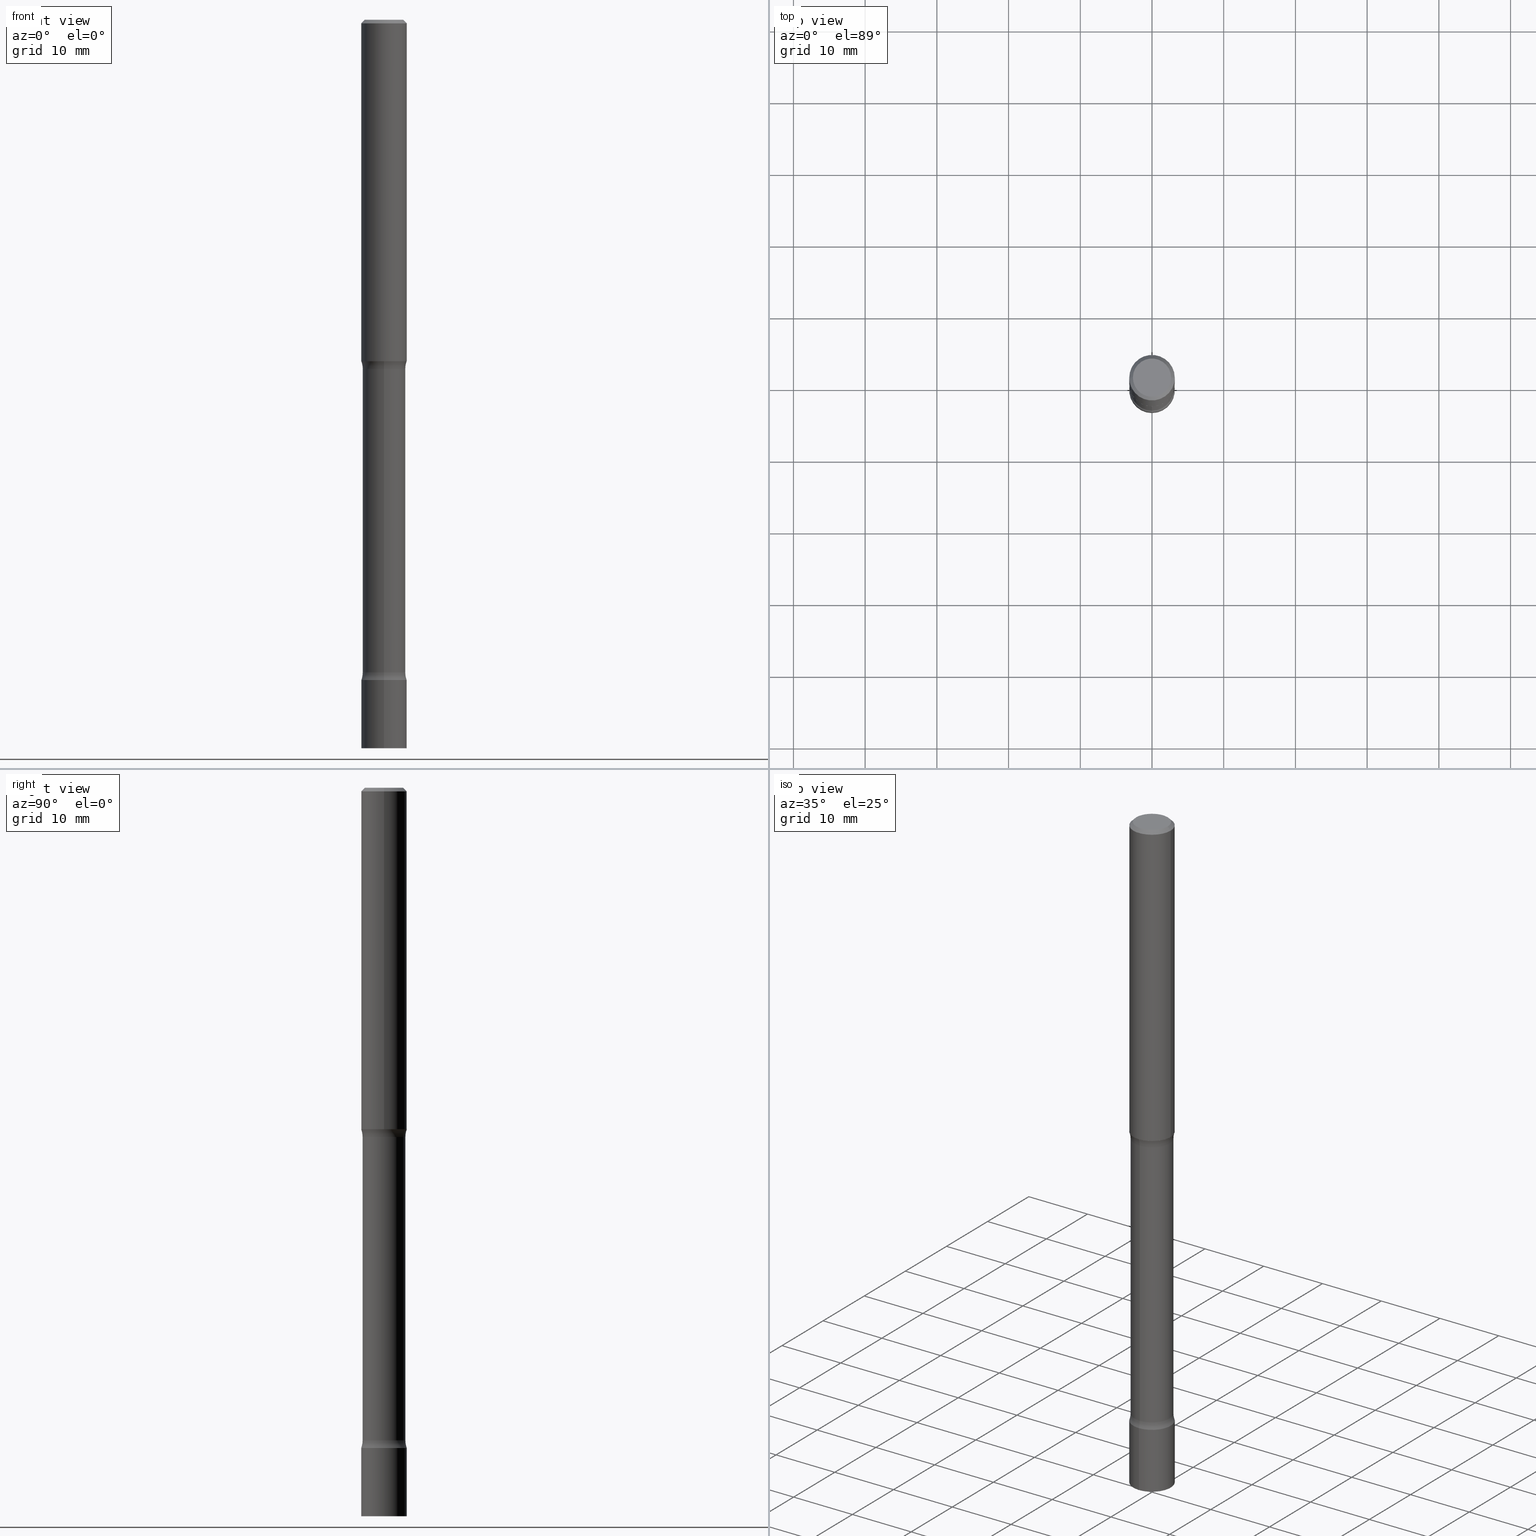
[diagram: canonical four-view strip — front | top / right | iso, engineering-drawing reading convention]
A machine part, canonical four-view strip (front | top / right | iso — engineering-drawing reading convention). The complete STEP part file that produces these views, byte-faithful:
ISO-10303-21;
HEADER;
FILE_DESCRIPTION (( 'STEP AP203' ),
    '1' );
FILE_NAME ('34640.STEP',
    '2024-03-11T13:19:26',
    ( '' ),
    ( '' ),
    'SwSTEP 2.0',
    'SolidWorks 2023',
    '' );
FILE_SCHEMA (( 'CONFIG_CONTROL_DESIGN' ));
ENDSEC;

DATA;
#1 = PLANE ( 'NONE',  #117 ) ;
#2 = DIRECTION ( 'NONE',  ( -2.442527019409646182E-29, 3.495694144941752733E-15, 1.000000000000000000 ) ) ;
#3 = ADVANCED_FACE ( 'NONE', ( #238 ), #447, .F. ) ;
#4 = AXIS2_PLACEMENT_3D ( 'NONE', #260, #298, #505 ) ;
#5 = EDGE_LOOP ( 'NONE', ( #222, #225 ) ) ;
#6 =( NAMED_UNIT ( * ) PLANE_ANGLE_UNIT ( ) SI_UNIT ( $, .RADIAN. ) );
#7 = EDGE_LOOP ( 'NONE', ( #265, #210, #18, #390 ) ) ;
#8 = CARTESIAN_POINT ( 'NONE',  ( 8.854160445359968216E-29, -1.267189127541385287E-14, -3.624999999999999556 ) ) ;
#9 = CARTESIAN_POINT ( 'NONE',  ( 9.513849917074038221E-29, -1.434975285100415564E-14, -4.000000000000000000 ) ) ;
#10 = EDGE_LOOP ( 'NONE', ( #320, #204, #372, #96 ) ) ;
#11 = AXIS2_PLACEMENT_3D ( 'NONE', #380, #268, #90 ) ;
#12 = CARTESIAN_POINT ( 'NONE',  ( 8.784378481168438150E-29, -1.247357122861336263E-14, -3.582353194726919821 ) ) ;
#13 = AXIS2_PLACEMENT_3D ( 'NONE', #202, #490, #420 ) ;
#14 = EDGE_LOOP ( 'NONE', ( #364, #303, #193, #58 ) ) ;
#15 = AXIS2_PLACEMENT_3D ( 'NONE', #134, #487, #135 ) ;
#16 = COORDINATED_UNIVERSAL_TIME_OFFSET ( 5, 0, .BEHIND. ) ;
#17 = CARTESIAN_POINT ( 'NONE',  ( 4.890937612370273159E-31, -6.982962677686291609E-17, -0.02000000000000000042 ) ) ;
#18 = ORIENTED_EDGE ( 'NONE', *, *, #501, .T. ) ;
#19 = CARTESIAN_POINT ( 'NONE',  ( 8.779137382850924251E-29, -1.248107677970883248E-14, -3.582353194726919821 ) ) ;
#20 = DIRECTION ( 'NONE',  ( -0.7071067811865469066, 2.468850131082251144E-15, -0.7071067811865479058 ) ) ;
#21 = DIRECTION ( 'NONE',  ( 6.982962677686265922E-15, 1.000000000000000000, -3.495694144941752733E-15 ) ) ;
#22 = ADVANCED_FACE ( 'NONE', ( #240 ), #30, .F. ) ;
#23 = DIRECTION ( 'NONE',  ( 1.759171924570855496E-29, -4.474297534907476675E-15, -1.000000000000000000 ) ) ;
#24 = ORIENTED_EDGE ( 'NONE', *, *, #325, .T. ) ;
#25 = AXIS2_PLACEMENT_3D ( 'NONE', #329, #496, #145 ) ;
#26 = AXIS2_PLACEMENT_3D ( 'NONE', #113, #341, #148 ) ;
#27 = APPROVAL ( #211, 'UNSPECIFIED' ) ;
#28 = DIRECTION ( 'NONE',  ( -2.445468806185136877E-29, 3.491481338843145188E-15, 1.000000000000000000 ) ) ;
#29 = EDGE_CURVE ( 'NONE', #129, #236, #77, .T. ) ;
#30 = PLANE ( 'NONE',  #383 ) ;
#31 = CALENDAR_DATE ( 2024, 11, 3 ) ;
#32 = EDGE_CURVE ( 'NONE', #362, #475, #38, .T. ) ;
#33 = ADVANCED_FACE ( 'NONE', ( #413 ), #289, .F. ) ;
#34 = AXIS2_PLACEMENT_3D ( 'NONE', #361, #191, #351 ) ;
#35 = CARTESIAN_POINT ( 'NONE',  ( 0.1249999999999999029, -7.419397845041682046E-15, -1.875000000000000000 ) ) ;
#36 = EDGE_CURVE ( 'NONE', #236, #326, #209, .T. ) ;
#37 = DATE_TIME_ROLE ( 'classification_date' ) ;
#38 = CIRCLE ( 'NONE', #279, 0.1250000000000001110 ) ;
#39 = DIRECTION ( 'NONE',  ( -6.982962677686266711E-15, -1.000000000000000000, 4.370956789862817205E-15 ) ) ;
#40 = FACE_OUTER_BOUND ( 'NONE', #5, .T. ) ;
#41 = DIRECTION ( 'NONE',  ( -6.982962677686265922E-15, -1.000000000000000000, 4.474297534907476675E-15 ) ) ;
#42 = DIRECTION ( 'NONE',  ( -6.982962677686265922E-15, -1.000000000000000000, 0.000000000000000000 ) ) ;
#43 = CARTESIAN_POINT ( 'NONE',  ( -8.061085147380546628E-16, -0.1175000000000136074, -3.999999999999999556 ) ) ;
#44 = VECTOR ( 'NONE', #28, 39.37007874015748143 ) ;
#45 = DIRECTION ( 'NONE',  ( 2.445468806185136597E-29, -3.491481338843145583E-15, -1.000000000000000000 ) ) ;
#46 = AXIS2_PLACEMENT_3D ( 'NONE', #399, #283, #480 ) ;
#47 = EDGE_LOOP ( 'NONE', ( #94, #173, #446, #243 ) ) ;
#48 = EDGE_CURVE ( 'NONE', #261, #128, #109, .T. ) ;
#49 = DIRECTION ( 'NONE',  ( 1.000000000000000000, -6.982962677686268288E-15, 0.000000000000000000 ) ) ;
#50 = ORIENTED_EDGE ( 'NONE', *, *, #492, .T. ) ;
#51 = FACE_OUTER_BOUND ( 'NONE', #47, .T. ) ;
#52 = PERSON_AND_ORGANIZATION_ROLE ( 'design_owner' ) ;
#53 = CARTESIAN_POINT ( 'NONE',  ( -0.1249999999999995559, 8.030407079339172796E-16, -0.02000000000000000042 ) ) ;
#54 = LOCAL_TIME ( 9, 19, 26.00000000000000000, #16 ) ;
#55 = DIRECTION ( 'NONE',  ( -2.442527019409646182E-29, 3.495694144941752733E-15, 1.000000000000000000 ) ) ;
#56 = APPROVAL_DATE_TIME ( #272, #189 ) ;
#57 = FACE_OUTER_BOUND ( 'NONE', #127, .T. ) ;
#58 = ORIENTED_EDGE ( 'NONE', *, *, #325, .F. ) ;
#59 = CARTESIAN_POINT ( 'NONE',  ( 9.513849917074038221E-29, -1.434975285100415564E-14, -4.000000000000000000 ) ) ;
#60 = PERSON_AND_ORGANIZATION_ROLE ( 'creator' ) ;
#61 = ORIENTED_EDGE ( 'NONE', *, *, #472, .F. ) ;
#62 = CC_DESIGN_PERSON_AND_ORGANIZATION_ASSIGNMENT ( #142, #146, ( #103 ) ) ;
#63 = ORIENTED_EDGE ( 'NONE', *, *, #492, .F. ) ;
#64 = ORIENTED_EDGE ( 'NONE', *, *, #467, .T. ) ;
#65 = CIRCLE ( 'NONE', #147, 0.1250000000000001110 ) ;
#66 = DIRECTION ( 'NONE',  ( 6.982962677686265922E-15, 1.000000000000000000, -4.474297534907476675E-15 ) ) ;
#67 = ORIENTED_EDGE ( 'NONE', *, *, #150, .F. ) ;
#68 = DATE_AND_TIME ( #110, #358 ) ;
#69 = ADVANCED_FACE ( 'NONE', ( #384 ), #256, .T. ) ;
#70 = AXIS2_PLACEMENT_3D ( 'NONE', #167, #235, #136 ) ;
#71 = DIRECTION ( 'NONE',  ( -2.445468806185136597E-29, 3.491481338843145583E-15, 1.000000000000000000 ) ) ;
#72 = PERSON_AND_ORGANIZATION ( #367, #196 ) ;
#73 = DATE_AND_TIME ( #245, #405 ) ;
#74 = DIRECTION ( 'NONE',  ( 6.982962677686265133E-15, 1.000000000000000000, -4.649954031768944672E-15 ) ) ;
#75 = CIRCLE ( 'NONE', #427, 0.1249999999999998473 ) ;
#76 = EDGE_CURVE ( 'NONE', #484, #439, #304, .T. ) ;
#77 = CIRCLE ( 'NONE', #70, 0.1249999999999999029 ) ;
#78 = DIRECTION ( 'NONE',  ( -6.982962677686266711E-15, -1.000000000000000000, 4.370956789862817205E-15 ) ) ;
#79 = CARTESIAN_POINT ( 'NONE',  ( -1.663670764459508730E-15, -0.2425000000000125111, -3.582353194726918488 ) ) ;
#80 = CIRCLE ( 'NONE', #479, 0.1249999999999983208 ) ;
#81 = CARTESIAN_POINT ( 'NONE',  ( 0.000000000000000000, 0.000000000000000000, 0.000000000000000000 ) ) ;
#82 = CARTESIAN_POINT ( 'NONE',  ( 9.770108077638584728E-29, -1.398277657976701093E-14, -4.000000000000000000 ) ) ;
#83 = PLANE ( 'NONE',  #441 ) ;
#84 = DIRECTION ( 'NONE',  ( 6.982962677686266711E-15, 1.000000000000000000, -4.649954031768988059E-15 ) ) ;
#85 = CARTESIAN_POINT ( 'NONE',  ( 0.1249999999999995559, -9.273918764983013908E-16, -0.02000000000000000042 ) ) ;
#86 = CIRCLE ( 'NONE', #123, 0.1049999999999996353 ) ;
#87 = PRODUCT ( '34640', '34640', '', ( #359 ) ) ;
#88 = CIRCLE ( 'NONE', #248, 0.1175000000000003542 ) ;
#89 = EDGE_CURVE ( 'NONE', #129, #343, #485, .T. ) ;
#90 = DIRECTION ( 'NONE',  ( -6.982962677686266711E-15, -1.000000000000000000, 3.495694144941752733E-15 ) ) ;
#91 = DIRECTION ( 'NONE',  ( 1.759171924570855496E-29, -4.474297534907476675E-15, -1.000000000000000000 ) ) ;
#92 = VERTEX_POINT ( 'NONE', #93 ) ;
#93 = CARTESIAN_POINT ( 'NONE',  ( 8.204981146282264856E-16, 0.1174999999999878642, -3.582353194726920265 ) ) ;
#94 = ORIENTED_EDGE ( 'NONE', *, *, #89, .F. ) ;
#95 = EDGE_LOOP ( 'NONE', ( #276, #264 ) ) ;
#96 = ORIENTED_EDGE ( 'NONE', *, *, #36, .F. ) ;
#97 = EDGE_LOOP ( 'NONE', ( #197, #369 ) ) ;
#98 =( LENGTH_UNIT ( ) NAMED_UNIT ( * ) SI_UNIT ( $, .METRE. ) );
#99 = EDGE_CURVE ( 'NONE', #92, #270, #168, .T. ) ;
#100 = EDGE_LOOP ( 'NONE', ( #63, #229 ) ) ;
#101 = ADVANCED_FACE ( 'NONE', ( #51 ), #271, .T. ) ;
#102 = APPROVAL_ROLE ( '' ) ;
#103 = SECURITY_CLASSIFICATION ( '', '', #503 ) ;
#104 = DIRECTION ( 'NONE',  ( 1.000000000000000000, -6.860497997771530774E-15, 4.828762852537539750E-29 ) ) ;
#105 = AXIS2_PLACEMENT_3D ( 'NONE', #481, #55, #353 ) ;
#106 = CONICAL_SURFACE ( 'NONE', #460, 0.1249999999999995559, 0.7853981633974476129 ) ;
#107 = DATE_TIME_ROLE ( 'creation_date' ) ;
#108 = VERTEX_POINT ( 'NONE', #349 ) ;
#109 = CIRCLE ( 'NONE', #25, 0.1250000000000001110 ) ;
#110 = CALENDAR_DATE ( 2024, 11, 3 ) ;
#111 = AXIS2_PLACEMENT_3D ( 'NONE', #17, #281, #234 ) ;
#112 = CARTESIAN_POINT ( 'NONE',  ( 4.585254011597131119E-29, -6.546527510330898707E-15, -1.875000000000000000 ) ) ;
#113 = CARTESIAN_POINT ( 'NONE',  ( 7.332110811570553619E-16, 0.1049999999999996353, -3.900823592740812603E-16 ) ) ;
#114 = DIRECTION ( 'NONE',  ( -1.759171924570855216E-29, 4.474297534907476675E-15, 1.000000000000000000 ) ) ;
#115 = ADVANCED_FACE ( 'NONE', ( #448 ), #408, .T. ) ;
#116 = DIRECTION ( 'NONE',  ( -2.442527019409646182E-29, 3.495694144941752733E-15, 1.000000000000000000 ) ) ;
#117 = AXIS2_PLACEMENT_3D ( 'NONE', #112, #429, #340 ) ;
#118 = ORIENTED_EDGE ( 'NONE', *, *, #489, .F. ) ;
#119 = DIRECTION ( 'NONE',  ( 6.982962677686265133E-15, 1.000000000000000000, -4.370956789862817205E-15 ) ) ;
#120 = CARTESIAN_POINT ( 'NONE',  ( 9.770108077638584728E-29, -1.398277657976701093E-14, -4.000000000000000000 ) ) ;
#121 = EDGE_CURVE ( 'NONE', #407, #471, #374, .T. ) ;
#122 = VECTOR ( 'NONE', #333, 39.37007874015748143 ) ;
#123 = AXIS2_PLACEMENT_3D ( 'NONE', #152, #144, #254 ) ;
#124 = ORIENTED_EDGE ( 'NONE', *, *, #218, .T. ) ;
#125 = LINE ( 'NONE', #269, #507 ) ;
#126 = ORIENTED_EDGE ( 'NONE', *, *, #397, .F. ) ;
#127 = EDGE_LOOP ( 'NONE', ( #453, #350, #285, #410 ) ) ;
#128 = VERTEX_POINT ( 'NONE', #151 ) ;
#129 = VERTEX_POINT ( 'NONE', #300 ) ;
#130 = DIRECTION ( 'NONE',  ( 6.982962677686266711E-15, 1.000000000000000000, -4.370956789862879525E-15 ) ) ;
#131 = CC_DESIGN_PERSON_AND_ORGANIZATION_ASSIGNMENT ( #417, #251, ( #206 ) ) ;
#132 = AXIS2_PLACEMENT_3D ( 'NONE', #165, #166, #66 ) ;
#133 = DIRECTION ( 'NONE',  ( 6.860497997771531562E-15, 1.000000000000000000, 0.000000000000000000 ) ) ;
#134 = CARTESIAN_POINT ( 'NONE',  ( 0.000000000000000000, 0.000000000000000000, 0.000000000000000000 ) ) ;
#135 = DIRECTION ( 'NONE',  ( 1.000000000000000000, 0.000000000000000000, 0.000000000000000000 ) ) ;
#136 = DIRECTION ( 'NONE',  ( 1.000000000000000000, -6.982962677686268288E-15, 0.000000000000000000 ) ) ;
#137 = EDGE_LOOP ( 'NONE', ( #373, #452 ) ) ;
#138 = TOROIDAL_SURFACE ( 'NONE', #46, 0.2424999999999982725, 0.1250000000000001110 ) ;
#139 = APPROVAL_PERSON_ORGANIZATION ( #242, #355, #421 ) ;
#140 = ORIENTED_EDGE ( 'NONE', *, *, #99, .T. ) ;
#141 = CIRCLE ( 'NONE', #179, 0.1250000000000001110 ) ;
#142 = PERSON_AND_ORGANIZATION ( #367, #196 ) ;
#143 = ADVANCED_FACE ( 'NONE', ( #40 ), #378, .T. ) ;
#144 = DIRECTION ( 'NONE',  ( -2.445468806185136597E-29, 3.491481338843145583E-15, 1.000000000000000000 ) ) ;
#145 = DIRECTION ( 'NONE',  ( -6.982962677686266711E-15, -1.000000000000000000, 0.000000000000000000 ) ) ;
#146 = PERSON_AND_ORGANIZATION_ROLE ( 'classification_officer' ) ;
#147 = AXIS2_PLACEMENT_3D ( 'NONE', #82, #457, #78 ) ;
#148 = DIRECTION ( 'NONE',  ( -1.000000000000000000, 6.982962677686265922E-15, -4.876176775795935793E-29 ) ) ;
#149 = DIRECTION ( 'NONE',  ( 1.759171924570855496E-29, -4.474297534907476675E-15, -1.000000000000000000 ) ) ;
#150 = EDGE_CURVE ( 'NONE', #108, #439, #433, .T. ) ;
#151 = CARTESIAN_POINT ( 'NONE',  ( 8.728703347108289941E-16, 0.1249999999999934636, -1.875000000000000666 ) ) ;
#152 = CARTESIAN_POINT ( 'NONE',  ( 1.148236555768741665E-45, -1.639377487418492057E-31, -4.695363739110452099E-17 ) ) ;
#153 = CARTESIAN_POINT ( 'NONE',  ( -8.575622497213541776E-16, -0.1250000000000128508, -3.624999999999999112 ) ) ;
#154 = CARTESIAN_POINT ( 'NONE',  ( 1.693368449339007556E-15, 0.2424999999999875866, -3.582353194726920709 ) ) ;
#155 = AXIS2_PLACEMENT_3D ( 'NONE', #19, #317, #402 ) ;
#156 = DIRECTION ( 'NONE',  ( 1.759171924570855496E-29, -4.474297534907476675E-15, -1.000000000000000000 ) ) ;
#157 = ORIENTED_EDGE ( 'NONE', *, *, #185, .T. ) ;
#158 = DIRECTION ( 'NONE',  ( 1.000000000000000000, -6.860497997771530774E-15, 4.828762852537539750E-29 ) ) ;
#159 = ORIENTED_EDGE ( 'NONE', *, *, #48, .F. ) ;
#160 = DIRECTION ( 'NONE',  ( 1.759171924570855496E-29, -4.474297534907476675E-15, -1.000000000000000000 ) ) ;
#161 = CIRCLE ( 'NONE', #34, 0.1174999999999981615 ) ;
#162 = FACE_OUTER_BOUND ( 'NONE', #495, .T. ) ;
#163 =( GEOMETRIC_REPRESENTATION_CONTEXT ( 3 ) GLOBAL_UNCERTAINTY_ASSIGNED_CONTEXT ( ( #428 ) ) GLOBAL_UNIT_ASSIGNED_CONTEXT ( ( #176, #6, #339 ) ) REPRESENTATION_CONTEXT ( 'NONE', 'WORKASPACE' ) );
#164 = ORIENTED_EDGE ( 'NONE', *, *, #150, .T. ) ;
#165 = CARTESIAN_POINT ( 'NONE',  ( 8.784378481168438150E-29, -1.247357122861336263E-14, -3.582353194726919821 ) ) ;
#166 = DIRECTION ( 'NONE',  ( 1.759171924570855496E-29, -4.474297534907476675E-15, -1.000000000000000000 ) ) ;
#167 = CARTESIAN_POINT ( 'NONE',  ( 4.585254011597131119E-29, -6.546527510330898707E-15, -1.875000000000000000 ) ) ;
#168 = CIRCLE ( 'NONE', #155, 0.1175000000000003542 ) ;
#169 = CIRCLE ( 'NONE', #232, 0.1249999999999998473 ) ;
#170 = ORIENTED_EDGE ( 'NONE', *, *, #32, .F. ) ;
#171 = ORIENTED_EDGE ( 'NONE', *, *, #307, .F. ) ;
#172 = COORDINATED_UNIVERSAL_TIME_OFFSET ( 5, 0, .BEHIND. ) ;
#173 = ORIENTED_EDGE ( 'NONE', *, *, #29, .T. ) ;
#174 = LOCAL_TIME ( 9, 19, 26.00000000000000000, #249 ) ;
#175 = CC_DESIGN_DATE_AND_TIME_ASSIGNMENT ( #68, #37, ( #103 ) ) ;
#176 =( CONVERSION_BASED_UNIT ( 'INCH', #216 ) LENGTH_UNIT ( ) NAMED_UNIT ( #201 ) );
#177 = DIRECTION ( 'NONE',  ( -1.000000000000000000, 6.982962677686265922E-15, -4.883557194083112340E-29 ) ) ;
#178 = CC_DESIGN_APPROVAL ( #355, ( #206 ) ) ;
#179 = AXIS2_PLACEMENT_3D ( 'NONE', #469, #116, #200 ) ;
#180 = CARTESIAN_POINT ( 'NONE',  ( 8.854160445359968216E-29, -1.267189127541385287E-14, -3.624999999999999556 ) ) ;
#181 = FACE_OUTER_BOUND ( 'NONE', #10, .T. ) ;
#182 = CARTESIAN_POINT ( 'NONE',  ( 8.881784197001260212E-16, 0.1250000000000001110, -4.369617681177194861E-16 ) ) ;
#183 = CARTESIAN_POINT ( 'NONE',  ( 0.000000000000000000, 0.000000000000000000, 0.000000000000000000 ) ) ;
#184 = DIRECTION ( 'NONE',  ( -2.442527019409646182E-29, 3.495694144941752733E-15, 1.000000000000000000 ) ) ;
#185 = EDGE_CURVE ( 'NONE', #278, #324, #215, .T. ) ;
#186 = ORIENTED_EDGE ( 'NONE', *, *, #375, .F. ) ;
#187 = VECTOR ( 'NONE', #437, 39.37007874015748143 ) ;
#188 = FACE_OUTER_BOUND ( 'NONE', #97, .T. ) ;
#189 = APPROVAL ( #194, 'UNSPECIFIED' ) ;
#190 = CC_DESIGN_DATE_AND_TIME_ASSIGNMENT ( #73, #107, ( #474 ) ) ;
#191 = DIRECTION ( 'NONE',  ( 1.759171924570855496E-29, -4.474297534907476675E-15, -1.000000000000000000 ) ) ;
#192 = VERTEX_POINT ( 'NONE', #426 ) ;
#193 = ORIENTED_EDGE ( 'NONE', *, *, #99, .F. ) ;
#194 = APPROVAL_STATUS ( 'not_yet_approved' ) ;
#195 = CLOSED_SHELL ( 'NONE', ( #205, #282, #476, #241, #3, #101 ) ) ;
#196 = ORGANIZATION ( 'UNSPECIFIED', 'UNSPECIFIED', '' ) ;
#197 = ORIENTED_EDGE ( 'NONE', *, *, #422, .T. ) ;
#198 = CARTESIAN_POINT ( 'NONE',  ( -0.1249999999999997224, 8.881784197001232602E-16, -6.148668862818618915E-30 ) ) ;
#199 = FACE_OUTER_BOUND ( 'NONE', #7, .T. ) ;
#200 = DIRECTION ( 'NONE',  ( -6.982962677686266711E-15, -1.000000000000000000, 4.370956789862817205E-15 ) ) ;
#201 = DIMENSIONAL_EXPONENTS ( 1.000000000000000000, 0.000000000000000000, 0.000000000000000000, 0.000000000000000000, 0.000000000000000000, 0.000000000000000000, 0.000000000000000000 ) ;
#202 = CARTESIAN_POINT ( 'NONE',  ( 4.585254011597131119E-29, -6.546527510330898707E-15, -1.875000000000000000 ) ) ;
#203 = DIRECTION ( 'NONE',  ( 1.759171924570855496E-29, -4.474297534907476675E-15, -1.000000000000000000 ) ) ;
#204 = ORIENTED_EDGE ( 'NONE', *, *, #89, .T. ) ;
#205 = ADVANCED_FACE ( 'NONE', ( #181 ), #465, .T. ) ;
#206 = PRODUCT_DEFINITION_FORMATION_WITH_SPECIFIED_SOURCE ( 'ANY', '', #87, .NOT_KNOWN. ) ;
#207 = AXIS2_PLACEMENT_3D ( 'NONE', #59, #203, #84 ) ;
#208 = CIRCLE ( 'NONE', #356, 0.1249999999999999029 ) ;
#209 = LINE ( 'NONE', #371, #44 ) ;
#210 = ORIENTED_EDGE ( 'NONE', *, *, #397, .T. ) ;
#211 = APPROVAL_STATUS ( 'not_yet_approved' ) ;
#212 = ORIENTED_EDGE ( 'NONE', *, *, #246, .T. ) ;
#213 = COORDINATED_UNIVERSAL_TIME_OFFSET ( 5, 0, .BEHIND. ) ;
#214 = CC_DESIGN_PERSON_AND_ORGANIZATION_ASSIGNMENT ( #409, #60, ( #474 ) ) ;
#215 = CIRCLE ( 'NONE', #4, 0.1049999999999996353 ) ;
#216 = LENGTH_MEASURE_WITH_UNIT ( LENGTH_MEASURE( 0.02539999999999999897 ), #98 );
#217 = DIRECTION ( 'NONE',  ( 1.000000000000000000, -6.982962677686265922E-15, 0.000000000000000000 ) ) ;
#218 = EDGE_CURVE ( 'NONE', #324, #278, #86, .T. ) ;
#219 = DIRECTION ( 'NONE',  ( 6.982962677686265922E-15, 1.000000000000000000, -4.649954031769031446E-15 ) ) ;
#220 = AXIS2_PLACEMENT_3D ( 'NONE', #252, #71, #217 ) ;
#221 = TOROIDAL_SURFACE ( 'NONE', #498, 0.2425000000000000488, 0.1249999999999998473 ) ;
#222 = ORIENTED_EDGE ( 'NONE', *, *, #438, .F. ) ;
#223 = VECTOR ( 'NONE', #20, 39.37007874015748854 ) ;
#224 = CARTESIAN_POINT ( 'NONE',  ( 8.728703347108728745E-16, 0.1249999999999874961, -3.625000000000000444 ) ) ;
#225 = ORIENTED_EDGE ( 'NONE', *, *, #246, .F. ) ;
#226 = DIRECTION ( 'NONE',  ( 6.982962677686265922E-15, 1.000000000000000000, -4.474297534907476675E-15 ) ) ;
#227 = EDGE_LOOP ( 'NONE', ( #126, #328, #309, #228 ) ) ;
#228 = ORIENTED_EDGE ( 'NONE', *, *, #259, .T. ) ;
#229 = ORIENTED_EDGE ( 'NONE', *, *, #467, .F. ) ;
#230 = CARTESIAN_POINT ( 'NONE',  ( 0.1249999999999995559, -9.273918764983013908E-16, -0.02000000000000000042 ) ) ;
#231 = CLOSED_SHELL ( 'NONE', ( #274, #69, #22, #143 ) ) ;
#232 = AXIS2_PLACEMENT_3D ( 'NONE', #79, #158, #388 ) ;
#233 = PERSON_AND_ORGANIZATION ( #367, #196 ) ;
#234 = DIRECTION ( 'NONE',  ( 1.000000000000000000, -6.982962677686265922E-15, 0.000000000000000000 ) ) ;
#235 = DIRECTION ( 'NONE',  ( -2.445468806185136597E-29, 3.491481338843145583E-15, 1.000000000000000000 ) ) ;
#236 = VERTEX_POINT ( 'NONE', #35 ) ;
#237 = ADVANCED_FACE ( 'NONE', ( #376 ), #1, .F. ) ;
#238 = FACE_OUTER_BOUND ( 'NONE', #137, .T. ) ;
#239 = AXIS2_PLACEMENT_3D ( 'NONE', #180, #506, #119 ) ;
#240 = FACE_OUTER_BOUND ( 'NONE', #95, .T. ) ;
#241 = ADVANCED_FACE ( 'NONE', ( #386 ), #332, .F. ) ;
#242 = PERSON_AND_ORGANIZATION ( #367, #196 ) ;
#243 = ORIENTED_EDGE ( 'NONE', *, *, #259, .F. ) ;
#244 = APPLICATION_CONTEXT ( 'configuration controlled 3d designs of mechanical parts and assemblies' ) ;
#245 = CALENDAR_DATE ( 2024, 11, 3 ) ;
#246 = EDGE_CURVE ( 'NONE', #192, #108, #65, .T. ) ;
#247 = CARTESIAN_POINT ( 'NONE',  ( -8.728703347107841277E-16, -0.1250000000000001110, 4.369617681177194861E-16 ) ) ;
#248 = AXIS2_PLACEMENT_3D ( 'NONE', #464, #432, #74 ) ;
#249 = COORDINATED_UNIVERSAL_TIME_OFFSET ( 5, 0, .BEHIND. ) ;
#250 = DIRECTION ( 'NONE',  ( -2.445468806185136597E-29, 3.491481338843145583E-15, 1.000000000000000000 ) ) ;
#251 = PERSON_AND_ORGANIZATION_ROLE ( 'design_supplier' ) ;
#252 = CARTESIAN_POINT ( 'NONE',  ( 4.890937612370273159E-31, -6.982962677686291609E-17, -0.02000000000000000042 ) ) ;
#253 = CARTESIAN_POINT ( 'NONE',  ( 8.864824422421120163E-29, -1.265661985330640259E-14, -3.624999999999999556 ) ) ;
#254 = DIRECTION ( 'NONE',  ( 1.000000000000000000, -6.982962677686266711E-15, 4.874400871621255591E-29 ) ) ;
#255 = CARTESIAN_POINT ( 'NONE',  ( 8.881784197002238400E-16, 0.1249999999999874545, -3.625000000000000444 ) ) ;
#256 = CYLINDRICAL_SURFACE ( 'NONE', #504, 0.1250000000000001110 ) ;
#257 = AXIS2_PLACEMENT_3D ( 'NONE', #183, #250, #508 ) ;
#258 = APPROVAL_PERSON_ORGANIZATION ( #233, #189, #102 ) ;
#259 = EDGE_CURVE ( 'NONE', #343, #326, #454, .T. ) ;
#260 = CARTESIAN_POINT ( 'NONE',  ( 1.148236555768741665E-45, -1.639377487418492057E-31, -4.695363739110452099E-17 ) ) ;
#261 = VERTEX_POINT ( 'NONE', #502 ) ;
#262 = DIRECTION ( 'NONE',  ( 0.7071067811865469066, -7.319954787623252890E-15, -0.7071067811865479058 ) ) ;
#263 = CARTESIAN_POINT ( 'NONE',  ( 5.775609577360970747E-29, -4.841870589325770661E-15, -1.875000000000000000 ) ) ;
#264 = ORIENTED_EDGE ( 'NONE', *, *, #76, .T. ) ;
#265 = ORIENTED_EDGE ( 'NONE', *, *, #218, .F. ) ;
#266 = CIRCLE ( 'NONE', #239, 0.1250000000000001110 ) ;
#267 = FACE_OUTER_BOUND ( 'NONE', #436, .T. ) ;
#268 = DIRECTION ( 'NONE',  ( -2.442527019409646182E-29, 3.495694144941752733E-15, 1.000000000000000000 ) ) ;
#269 = CARTESIAN_POINT ( 'NONE',  ( 8.204981146282261897E-16, 0.1174999999999849221, -4.000000000000000888 ) ) ;
#270 = VERTEX_POINT ( 'NONE', #431 ) ;
#271 = CYLINDRICAL_SURFACE ( 'NONE', #296, 0.1249999999999997224 ) ;
#272 = DATE_AND_TIME ( #318, #54 ) ;
#273 = ORIENTED_EDGE ( 'NONE', *, *, #443, .F. ) ;
#274 = ADVANCED_FACE ( 'NONE', ( #294 ), #463, .T. ) ;
#275 = CYLINDRICAL_SURFACE ( 'NONE', #395, 0.1174999999999992578 ) ;
#276 = ORIENTED_EDGE ( 'NONE', *, *, #491, .T. ) ;
#277 = DIRECTION ( 'NONE',  ( 1.000000000000000000, -6.982962677686266711E-15, 4.876176775795935232E-29 ) ) ;
#278 = VERTEX_POINT ( 'NONE', #391 ) ;
#279 = AXIS2_PLACEMENT_3D ( 'NONE', #486, #104, #133 ) ;
#280 = ADVANCED_FACE ( 'NONE', ( #482 ), #138, .F. ) ;
#281 = DIRECTION ( 'NONE',  ( -2.445468806185136597E-29, 3.491481338843145583E-15, 1.000000000000000000 ) ) ;
#282 = ADVANCED_FACE ( 'NONE', ( #199 ), #370, .T. ) ;
#283 = DIRECTION ( 'NONE',  ( 1.759171924570855496E-29, -4.474297534907476675E-15, -1.000000000000000000 ) ) ;
#284 = DIRECTION ( 'NONE',  ( 1.759171924570855496E-29, -4.474297534907476675E-15, -1.000000000000000000 ) ) ;
#285 = ORIENTED_EDGE ( 'NONE', *, *, #472, .T. ) ;
#286 = MANIFOLD_SOLID_BREP ( 'Body-Move/Copy2[2]', #195 ) ;
#287 = CARTESIAN_POINT ( 'NONE',  ( 5.857974489154167241E-29, -5.022171138983774304E-15, -1.917646805273080401 ) ) ;
#288 = VECTOR ( 'NONE', #262, 39.37007874015748854 ) ;
#289 = TOROIDAL_SURFACE ( 'NONE', #425, 0.2424999999999982725, 0.1250000000000001110 ) ;
#290 = DATE_AND_TIME ( #31, #174 ) ;
#291 = SHAPE_DEFINITION_REPRESENTATION ( #313, #389 ) ;
#292 = CARTESIAN_POINT ( 'NONE',  ( 9.781875224740546387E-29, -1.396592535537258233E-14, -4.000000000000000000 ) ) ;
#293 = ADVANCED_FACE ( 'NONE', ( #267 ), #221, .F. ) ;
#294 = FACE_OUTER_BOUND ( 'NONE', #347, .T. ) ;
#295 = EDGE_CURVE ( 'NONE', #236, #129, #208, .T. ) ;
#296 = AXIS2_PLACEMENT_3D ( 'NONE', #321, #368, #277 ) ;
#297 = PERSON_AND_ORGANIZATION ( #367, #196 ) ;
#298 = DIRECTION ( 'NONE',  ( -2.445468806185136597E-29, 3.491481338843145583E-15, 1.000000000000000000 ) ) ;
#299 = DESIGN_CONTEXT ( 'detailed design', #244, 'design' ) ;
#300 = CARTESIAN_POINT ( 'NONE',  ( -0.1249999999999999029, -2.420000148853752220E-15, -1.875000000000000000 ) ) ;
#301 = CARTESIAN_POINT ( 'NONE',  ( 4.890937612370273159E-31, -6.982962677686291609E-17, -0.02000000000000000042 ) ) ;
#302 = DIRECTION ( 'NONE',  ( -1.000000000000000000, 6.982962677686265922E-15, 0.000000000000000000 ) ) ;
#303 = ORIENTED_EDGE ( 'NONE', *, *, #443, .T. ) ;
#304 = CIRCLE ( 'NONE', #105, 0.1250000000000001110 ) ;
#305 = CARTESIAN_POINT ( 'NONE',  ( -8.728703347106954794E-16, -0.1250000000000127953, -3.624999999999999112 ) ) ;
#306 = EDGE_LOOP ( 'NONE', ( #171, #449, #64, #159 ) ) ;
#307 = EDGE_CURVE ( 'NONE', #362, #261, #161, .T. ) ;
#308 = ORIENTED_EDGE ( 'NONE', *, *, #489, .T. ) ;
#309 = ORIENTED_EDGE ( 'NONE', *, *, #342, .T. ) ;
#310 = CIRCLE ( 'NONE', #488, 0.1249999999999983208 ) ;
#311 = EDGE_LOOP ( 'NONE', ( #170, #186, #357, #50 ) ) ;
#312 = APPLICATION_CONTEXT ( 'configuration controlled 3d designs of mechanical parts and assemblies' ) ;
#313 = PRODUCT_DEFINITION_SHAPE ( 'NONE', 'NONE',  #474 ) ;
#314 = CARTESIAN_POINT ( 'NONE',  ( 0.1049999999999996353, -8.238720831321549034E-16, -4.695363739109907908E-17 ) ) ;
#315 = ORIENTED_EDGE ( 'NONE', *, *, #76, .F. ) ;
#316 = ADVANCED_FACE ( 'NONE', ( #162 ), #275, .T. ) ;
#317 = DIRECTION ( 'NONE',  ( 1.759171924570855496E-29, -4.474297534907476675E-15, -1.000000000000000000 ) ) ;
#318 = CALENDAR_DATE ( 2024, 11, 3 ) ;
#319 = ORIENTED_EDGE ( 'NONE', *, *, #422, .F. ) ;
#320 = ORIENTED_EDGE ( 'NONE', *, *, #295, .T. ) ;
#321 = CARTESIAN_POINT ( 'NONE',  ( 0.000000000000000000, 0.000000000000000000, 0.000000000000000000 ) ) ;
#322 = DIRECTION ( 'NONE',  ( 1.759171924570855496E-29, -4.474297534907476675E-15, -1.000000000000000000 ) ) ;
#323 = EDGE_LOOP ( 'NONE', ( #157, #124 ) ) ;
#324 = VERTEX_POINT ( 'NONE', #314 ) ;
#325 = EDGE_CURVE ( 'NONE', #261, #92, #125, .T. ) ;
#326 = VERTEX_POINT ( 'NONE', #230 ) ;
#327 = APPROVAL_DATE_TIME ( #497, #355 ) ;
#328 = ORIENTED_EDGE ( 'NONE', *, *, #185, .F. ) ;
#329 = CARTESIAN_POINT ( 'NONE',  ( 1.693368449338965747E-15, 0.2424999999999932487, -1.917646805273081512 ) ) ;
#330 = CC_DESIGN_APPROVAL ( #189, ( #474 ) ) ;
#331 = COORDINATED_UNIVERSAL_TIME_OFFSET ( 5, 0, .BEHIND. ) ;
#332 = PLANE ( 'NONE',  #26 ) ;
#333 = DIRECTION ( 'NONE',  ( -2.442527019409646182E-29, 3.495694144941752733E-15, 1.000000000000000000 ) ) ;
#334 = LINE ( 'NONE', #85, #288 ) ;
#335 = CC_DESIGN_PERSON_AND_ORGANIZATION_ASSIGNMENT ( #72, #462, ( #206 ) ) ;
#336 = AXIS2_PLACEMENT_3D ( 'NONE', #8, #23, #473 ) ;
#337 = CIRCLE ( 'NONE', #360, 0.1250000000000001110 ) ;
#338 = FACE_OUTER_BOUND ( 'NONE', #227, .T. ) ;
#339 =( NAMED_UNIT ( * ) SI_UNIT ( $, .STERADIAN. ) SOLID_ANGLE_UNIT ( ) );
#340 = DIRECTION ( 'NONE',  ( 6.982962677686265922E-15, 1.000000000000000000, -4.474297534907476675E-15 ) ) ;
#341 = DIRECTION ( 'NONE',  ( 2.438088387897960049E-29, -3.491481338843145188E-15, -1.000000000000000000 ) ) ;
#342 = EDGE_CURVE ( 'NONE', #278, #343, #404, .T. ) ;
#343 = VERTEX_POINT ( 'NONE', #53 ) ;
#344 = TOROIDAL_SURFACE ( 'NONE', #132, 0.2425000000000000488, 0.1249999999999998473 ) ;
#345 = ADVANCED_FACE ( 'NONE', ( #57 ), #344, .F. ) ;
#346 = DIRECTION ( 'NONE',  ( 6.982962677686266711E-15, 1.000000000000000000, -4.370956789862879525E-15 ) ) ;
#347 = EDGE_LOOP ( 'NONE', ( #352, #308, #348, #67 ) ) ;
#348 = ORIENTED_EDGE ( 'NONE', *, *, #491, .F. ) ;
#349 = CARTESIAN_POINT ( 'NONE',  ( -8.728703347106864075E-16, -0.1250000000000140998, -3.999999999999999556 ) ) ;
#350 = ORIENTED_EDGE ( 'NONE', *, *, #377, .T. ) ;
#351 = DIRECTION ( 'NONE',  ( 6.982962677686265922E-15, 1.000000000000000000, -4.649954031769031446E-15 ) ) ;
#352 = ORIENTED_EDGE ( 'NONE', *, *, #438, .T. ) ;
#353 = DIRECTION ( 'NONE',  ( -6.982962677686266711E-15, -1.000000000000000000, 4.370956789862817205E-15 ) ) ;
#354 = DIRECTION ( 'NONE',  ( -1.000000000000000000, 6.982962677686265922E-15, 0.000000000000000000 ) ) ;
#355 = APPROVAL ( #500, 'UNSPECIFIED' ) ;
#356 = AXIS2_PLACEMENT_3D ( 'NONE', #400, #396, #49 ) ;
#357 = ORIENTED_EDGE ( 'NONE', *, *, #48, .T. ) ;
#358 = LOCAL_TIME ( 9, 19, 26.00000000000000000, #213 ) ;
#359 = MECHANICAL_CONTEXT ( 'NONE', #312, 'mechanical' ) ;
#360 = AXIS2_PLACEMENT_3D ( 'NONE', #120, #184, #39 ) ;
#361 = CARTESIAN_POINT ( 'NONE',  ( 5.850632639870013591E-29, -5.032685085030794996E-15, -1.917646805273080624 ) ) ;
#362 = VERTEX_POINT ( 'NONE', #483 ) ;
#363 = DIRECTION ( 'NONE',  ( -2.445468806185136877E-29, 3.491481338843145188E-15, 1.000000000000000000 ) ) ;
#364 = ORIENTED_EDGE ( 'NONE', *, *, #375, .T. ) ;
#365 = CARTESIAN_POINT ( 'NONE',  ( -0.1249999999999995559, 8.030407079339172796E-16, -0.02000000000000000042 ) ) ;
#366 = DIRECTION ( 'NONE',  ( 2.442527019409645902E-29, -3.495694144941752733E-15, -1.000000000000000000 ) ) ;
#367 = PERSON ( 'UNSPECIFIED', 'UNSPECIFIED', 'UNSPECIFIED', ('UNSPECIFIED'), ('UNSPECIFIED'), ('UNSPECIFIED') ) ;
#368 = DIRECTION ( 'NONE',  ( -2.445468806185136597E-29, 3.491481338843145583E-15, 1.000000000000000000 ) ) ;
#369 = ORIENTED_EDGE ( 'NONE', *, *, #121, .T. ) ;
#370 = CONICAL_SURFACE ( 'NONE', #406, 0.1249999999999995559, 0.7853981633974476129 ) ;
#371 = CARTESIAN_POINT ( 'NONE',  ( 0.1249999999999997224, -8.728703347107813667E-16, 6.095220969744905728E-30 ) ) ;
#372 = ORIENTED_EDGE ( 'NONE', *, *, #501, .F. ) ;
#373 = ORIENTED_EDGE ( 'NONE', *, *, #295, .F. ) ;
#374 = CIRCLE ( 'NONE', #336, 0.1250000000000001110 ) ;
#375 = EDGE_CURVE ( 'NONE', #261, #362, #470, .T. ) ;
#376 = FACE_OUTER_BOUND ( 'NONE', #100, .T. ) ;
#377 = EDGE_CURVE ( 'NONE', #407, #270, #169, .T. ) ;
#378 = PLANE ( 'NONE',  #456 ) ;
#379 = EDGE_CURVE ( 'NONE', #471, #92, #75, .T. ) ;
#380 = CARTESIAN_POINT ( 'NONE',  ( 0.000000000000000000, 0.000000000000000000, 0.000000000000000000 ) ) ;
#381 = CARTESIAN_POINT ( 'NONE',  ( -8.575622497213719269E-16, -0.1250000000000031364, -1.874999999999999556 ) ) ;
#382 = CC_DESIGN_SECURITY_CLASSIFICATION ( #103, ( #206 ) ) ;
#383 = AXIS2_PLACEMENT_3D ( 'NONE', #493, #366, #21 ) ;
#384 = FACE_OUTER_BOUND ( 'NONE', #445, .T. ) ;
#385 = AXIS2_PLACEMENT_3D ( 'NONE', #419, #156, #219 ) ;
#386 = FACE_OUTER_BOUND ( 'NONE', #323, .T. ) ;
#387 = LINE ( 'NONE', #182, #415 ) ;
#388 = DIRECTION ( 'NONE',  ( 6.860497997771530774E-15, 1.000000000000000000, 0.000000000000000000 ) ) ;
#389 = ADVANCED_BREP_SHAPE_REPRESENTATION ( '34640', ( #458, #286, #459, #15 ), #163 ) ;
#390 = ORIENTED_EDGE ( 'NONE', *, *, #342, .F. ) ;
#391 = CARTESIAN_POINT ( 'NONE',  ( -0.1049999999999996353, 7.681258945454863208E-16, -4.695363739110977184E-17 ) ) ;
#392 = LINE ( 'NONE', #43, #187 ) ;
#393 = CARTESIAN_POINT ( 'NONE',  ( 4.890937612370273159E-31, -6.982962677686291609E-17, -0.02000000000000000042 ) ) ;
#394 = VECTOR ( 'NONE', #363, 39.37007874015748143 ) ;
#395 = AXIS2_PLACEMENT_3D ( 'NONE', #9, #160, #442 ) ;
#396 = DIRECTION ( 'NONE',  ( -2.445468806185136597E-29, 3.491481338843145583E-15, 1.000000000000000000 ) ) ;
#397 = EDGE_CURVE ( 'NONE', #324, #326, #334, .T. ) ;
#398 = PRODUCT_RELATED_PRODUCT_CATEGORY ( 'detail', '', ( #87 ) ) ;
#399 = CARTESIAN_POINT ( 'NONE',  ( 5.857974489154167241E-29, -5.022171138983774304E-15, -1.917646805273080401 ) ) ;
#400 = CARTESIAN_POINT ( 'NONE',  ( 4.585254011597131119E-29, -6.546527510330898707E-15, -1.875000000000000000 ) ) ;
#401 = ORIENTED_EDGE ( 'NONE', *, *, #377, .F. ) ;
#402 = DIRECTION ( 'NONE',  ( 6.982962677686265133E-15, 1.000000000000000000, -4.649954031768944672E-15 ) ) ;
#403 = PERSON_AND_ORGANIZATION ( #367, #196 ) ;
#404 = LINE ( 'NONE', #365, #223 ) ;
#405 = LOCAL_TIME ( 9, 19, 26.00000000000000000, #172 ) ;
#406 = AXIS2_PLACEMENT_3D ( 'NONE', #393, #45, #354 ) ;
#407 = VERTEX_POINT ( 'NONE', #153 ) ;
#408 = CYLINDRICAL_SURFACE ( 'NONE', #207, 0.1174999999999992578 ) ;
#409 = PERSON_AND_ORGANIZATION ( #367, #196 ) ;
#410 = ORIENTED_EDGE ( 'NONE', *, *, #379, .F. ) ;
#411 = DIRECTION ( 'NONE',  ( 6.982962677686265133E-15, 1.000000000000000000, -4.474297534907476675E-15 ) ) ;
#412 = APPLICATION_PROTOCOL_DEFINITION ( 'international standard', 'config_control_design', 1994, #244 ) ;
#413 = FACE_OUTER_BOUND ( 'NONE', #306, .T. ) ;
#414 = CC_DESIGN_APPROVAL ( #27, ( #103 ) ) ;
#415 = VECTOR ( 'NONE', #2, 39.37007874015748143 ) ;
#416 = ORIENTED_EDGE ( 'NONE', *, *, #379, .T. ) ;
#417 = PERSON_AND_ORGANIZATION ( #367, #196 ) ;
#418 = CC_DESIGN_PERSON_AND_ORGANIZATION_ASSIGNMENT ( #403, #52, ( #87 ) ) ;
#419 = CARTESIAN_POINT ( 'NONE',  ( 5.850632639870013591E-29, -5.032685085030794996E-15, -1.917646805273080624 ) ) ;
#420 = DIRECTION ( 'NONE',  ( 1.000000000000000000, -6.982962677686265922E-15, 4.876176775795935793E-29 ) ) ;
#421 = APPROVAL_ROLE ( '' ) ;
#422 = EDGE_CURVE ( 'NONE', #471, #407, #266, .T. ) ;
#423 = CALENDAR_DATE ( 2024, 11, 3 ) ;
#424 = LOCAL_TIME ( 9, 19, 26.00000000000000000, #331 ) ;
#425 = AXIS2_PLACEMENT_3D ( 'NONE', #287, #284, #411 ) ;
#426 = CARTESIAN_POINT ( 'NONE',  ( 8.881784197002191068E-16, 0.1249999999999861361, -4.000000000000000888 ) ) ;
#427 = AXIS2_PLACEMENT_3D ( 'NONE', #154, #177, #42 ) ;
#428 = UNCERTAINTY_MEASURE_WITH_UNIT (LENGTH_MEASURE( 1.000000000000000082E-05 ), #176, 'distance_accuracy_value', 'NONE');
#429 = DIRECTION ( 'NONE',  ( 1.759171924570855216E-29, -4.474297534907476675E-15, -1.000000000000000000 ) ) ;
#430 = APPROVAL_ROLE ( '' ) ;
#431 = CARTESIAN_POINT ( 'NONE',  ( -8.318353822297121609E-16, -0.1175000000000128303, -3.582353194726918932 ) ) ;
#432 = DIRECTION ( 'NONE',  ( 1.759171924570855496E-29, -4.474297534907476675E-15, -1.000000000000000000 ) ) ;
#433 = LINE ( 'NONE', #247, #122 ) ;
#434 = CIRCLE ( 'NONE', #111, 0.1249999999999995559 ) ;
#435 = DIRECTION ( 'NONE',  ( 6.982962677686265922E-15, 1.000000000000000000, -3.495694144941752733E-15 ) ) ;
#436 = EDGE_LOOP ( 'NONE', ( #401, #319, #416, #140 ) ) ;
#437 = DIRECTION ( 'NONE',  ( 1.759171924570855496E-29, -4.474297534907476675E-15, -1.000000000000000000 ) ) ;
#438 = EDGE_CURVE ( 'NONE', #108, #192, #337, .T. ) ;
#439 = VERTEX_POINT ( 'NONE', #305 ) ;
#440 = DIRECTION ( 'NONE',  ( -6.982962677686266711E-15, -1.000000000000000000, 3.495694144941752733E-15 ) ) ;
#441 = AXIS2_PLACEMENT_3D ( 'NONE', #253, #114, #41 ) ;
#442 = DIRECTION ( 'NONE',  ( 6.982962677686266711E-15, 1.000000000000000000, -4.649954031768988059E-15 ) ) ;
#443 = EDGE_CURVE ( 'NONE', #362, #270, #392, .T. ) ;
#444 = DIRECTION ( 'NONE',  ( 1.759171924570855496E-29, -4.474297534907476675E-15, -1.000000000000000000 ) ) ;
#445 = EDGE_LOOP ( 'NONE', ( #118, #212, #164, #315 ) ) ;
#446 = ORIENTED_EDGE ( 'NONE', *, *, #36, .T. ) ;
#447 = PLANE ( 'NONE',  #13 ) ;
#448 = FACE_OUTER_BOUND ( 'NONE', #14, .T. ) ;
#449 = ORIENTED_EDGE ( 'NONE', *, *, #32, .T. ) ;
#450 = APPLICATION_PROTOCOL_DEFINITION ( 'international standard', 'config_control_design', 1994, #312 ) ;
#451 = CARTESIAN_POINT ( 'NONE',  ( 5.775609577360970747E-29, -4.841870589325770661E-15, -1.875000000000000000 ) ) ;
#452 = ORIENTED_EDGE ( 'NONE', *, *, #29, .F. ) ;
#453 = ORIENTED_EDGE ( 'NONE', *, *, #121, .F. ) ;
#454 = CIRCLE ( 'NONE', #220, 0.1249999999999995559 ) ;
#455 = APPROVAL_PERSON_ORGANIZATION ( #297, #27, #430 ) ;
#456 = AXIS2_PLACEMENT_3D ( 'NONE', #292, #468, #435 ) ;
#457 = DIRECTION ( 'NONE',  ( -2.442527019409646182E-29, 3.495694144941752733E-15, 1.000000000000000000 ) ) ;
#458 = MANIFOLD_SOLID_BREP ( 'Body-Move/Copy2[1]', #231 ) ;
#459 = MANIFOLD_SOLID_BREP ( 'Body-Move/Copy2[4]', #477 ) ;
#460 = AXIS2_PLACEMENT_3D ( 'NONE', #301, #466, #302 ) ;
#461 = ADVANCED_FACE ( 'NONE', ( #188 ), #83, .F. ) ;
#462 = PERSON_AND_ORGANIZATION_ROLE ( 'creator' ) ;
#463 = CYLINDRICAL_SURFACE ( 'NONE', #11, 0.1250000000000001110 ) ;
#464 = CARTESIAN_POINT ( 'NONE',  ( 8.779137382850924251E-29, -1.248107677970883248E-14, -3.582353194726919821 ) ) ;
#465 = CYLINDRICAL_SURFACE ( 'NONE', #257, 0.1249999999999997224 ) ;
#466 = DIRECTION ( 'NONE',  ( 2.445468806185136597E-29, -3.491481338843145583E-15, -1.000000000000000000 ) ) ;
#467 = EDGE_CURVE ( 'NONE', #475, #128, #310, .T. ) ;
#468 = DIRECTION ( 'NONE',  ( 2.442527019409645902E-29, -3.495694144941752733E-15, -1.000000000000000000 ) ) ;
#469 = CARTESIAN_POINT ( 'NONE',  ( 8.854160445359965974E-29, -1.267189127541385287E-14, -3.624999999999999556 ) ) ;
#470 = CIRCLE ( 'NONE', #385, 0.1174999999999981615 ) ;
#471 = VERTEX_POINT ( 'NONE', #224 ) ;
#472 = EDGE_CURVE ( 'NONE', #270, #92, #88, .T. ) ;
#473 = DIRECTION ( 'NONE',  ( 6.982962677686265133E-15, 1.000000000000000000, -4.370956789862817205E-15 ) ) ;
#474 = PRODUCT_DEFINITION ( 'UNKNOWN', '', #206, #299 ) ;
#475 = VERTEX_POINT ( 'NONE', #381 ) ;
#476 = ADVANCED_FACE ( 'NONE', ( #338 ), #106, .T. ) ;
#477 = CLOSED_SHELL ( 'NONE', ( #115, #345, #33, #280, #237, #461, #293, #316 ) ) ;
#478 = ORIENTED_EDGE ( 'NONE', *, *, #307, .T. ) ;
#479 = AXIS2_PLACEMENT_3D ( 'NONE', #451, #322, #130 ) ;
#480 = DIRECTION ( 'NONE',  ( 6.982962677686265133E-15, 1.000000000000000000, -4.474297534907476675E-15 ) ) ;
#481 = CARTESIAN_POINT ( 'NONE',  ( 8.854160445359965974E-29, -1.267189127541385287E-14, -3.624999999999999556 ) ) ;
#482 = FACE_OUTER_BOUND ( 'NONE', #311, .T. ) ;
#483 = CARTESIAN_POINT ( 'NONE',  ( -8.318353822297277409E-16, -0.1175000000000032269, -1.917646805273080179 ) ) ;
#484 = VERTEX_POINT ( 'NONE', #255 ) ;
#485 = LINE ( 'NONE', #198, #394 ) ;
#486 = CARTESIAN_POINT ( 'NONE',  ( -1.663670764459525690E-15, -0.2425000000000032963, -1.917646805273079291 ) ) ;
#487 = DIRECTION ( 'NONE',  ( 0.000000000000000000, 0.000000000000000000, 1.000000000000000000 ) ) ;
#488 = AXIS2_PLACEMENT_3D ( 'NONE', #263, #149, #346 ) ;
#489 = EDGE_CURVE ( 'NONE', #192, #484, #387, .T. ) ;
#490 = DIRECTION ( 'NONE',  ( -2.438088387897960049E-29, 3.491481338843145188E-15, 1.000000000000000000 ) ) ;
#491 = EDGE_CURVE ( 'NONE', #439, #484, #141, .T. ) ;
#492 = EDGE_CURVE ( 'NONE', #128, #475, #80, .T. ) ;
#493 = CARTESIAN_POINT ( 'NONE',  ( 8.864824422421120163E-29, -1.265661985330640259E-14, -3.624999999999999556 ) ) ;
#494 = APPROVAL_DATE_TIME ( #290, #27 ) ;
#495 = EDGE_LOOP ( 'NONE', ( #273, #478, #24, #61 ) ) ;
#496 = DIRECTION ( 'NONE',  ( -1.000000000000000000, 6.982962677686265922E-15, -4.883557194083112340E-29 ) ) ;
#497 = DATE_AND_TIME ( #423, #424 ) ;
#498 = AXIS2_PLACEMENT_3D ( 'NONE', #12, #91, #226 ) ;
#499 = DIRECTION ( 'NONE',  ( -2.442527019409646182E-29, 3.495694144941752733E-15, 1.000000000000000000 ) ) ;
#500 = APPROVAL_STATUS ( 'not_yet_approved' ) ;
#501 = EDGE_CURVE ( 'NONE', #326, #343, #434, .T. ) ;
#502 = CARTESIAN_POINT ( 'NONE',  ( 8.204981146281819149E-16, 0.1174999999999931238, -1.917646805273081290 ) ) ;
#503 = SECURITY_CLASSIFICATION_LEVEL ( 'unclassified' ) ;
#504 = AXIS2_PLACEMENT_3D ( 'NONE', #81, #499, #440 ) ;
#505 = DIRECTION ( 'NONE',  ( 1.000000000000000000, -6.982962677686266711E-15, 4.874400871621255591E-29 ) ) ;
#506 = DIRECTION ( 'NONE',  ( 1.759171924570855496E-29, -4.474297534907476675E-15, -1.000000000000000000 ) ) ;
#507 = VECTOR ( 'NONE', #444, 39.37007874015748143 ) ;
#508 = DIRECTION ( 'NONE',  ( 1.000000000000000000, -6.982962677686266711E-15, 4.876176775795935232E-29 ) ) ;
ENDSEC;
END-ISO-10303-21;
